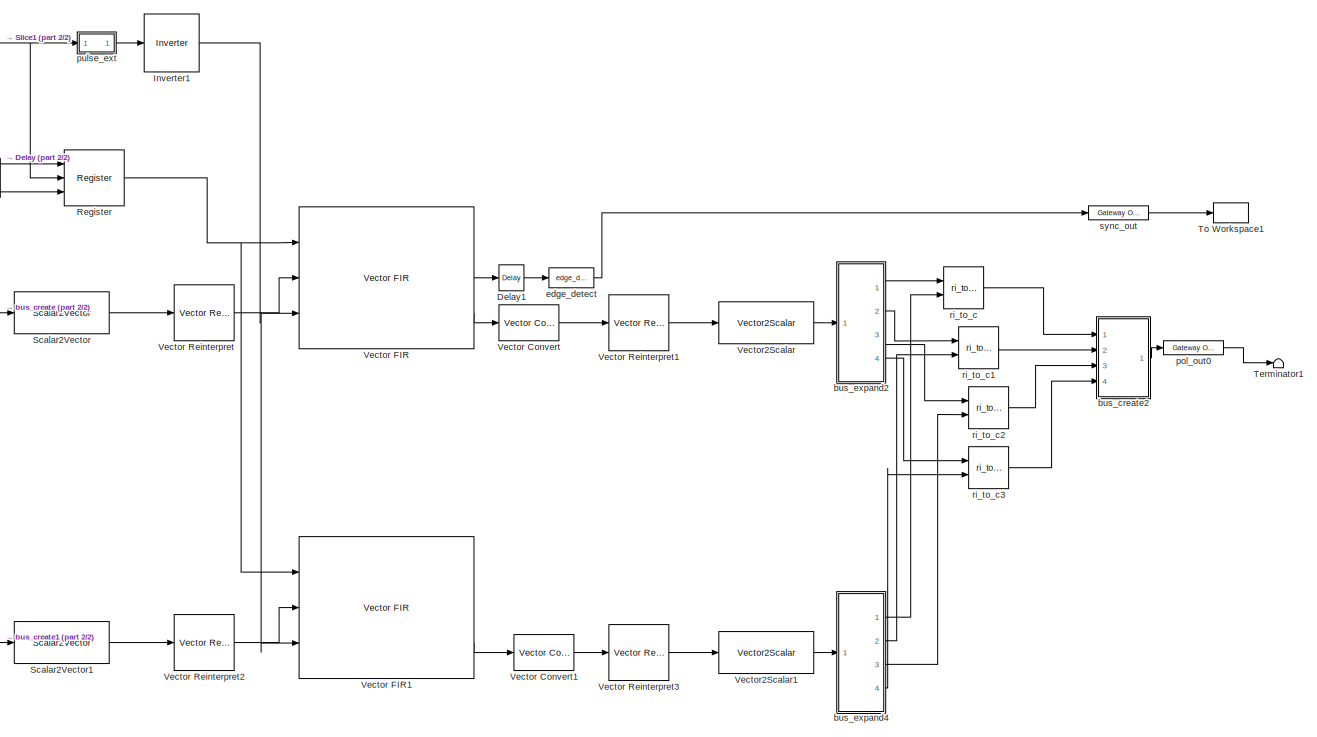
[diagram: root canvas - part 1/2, right side, full height]
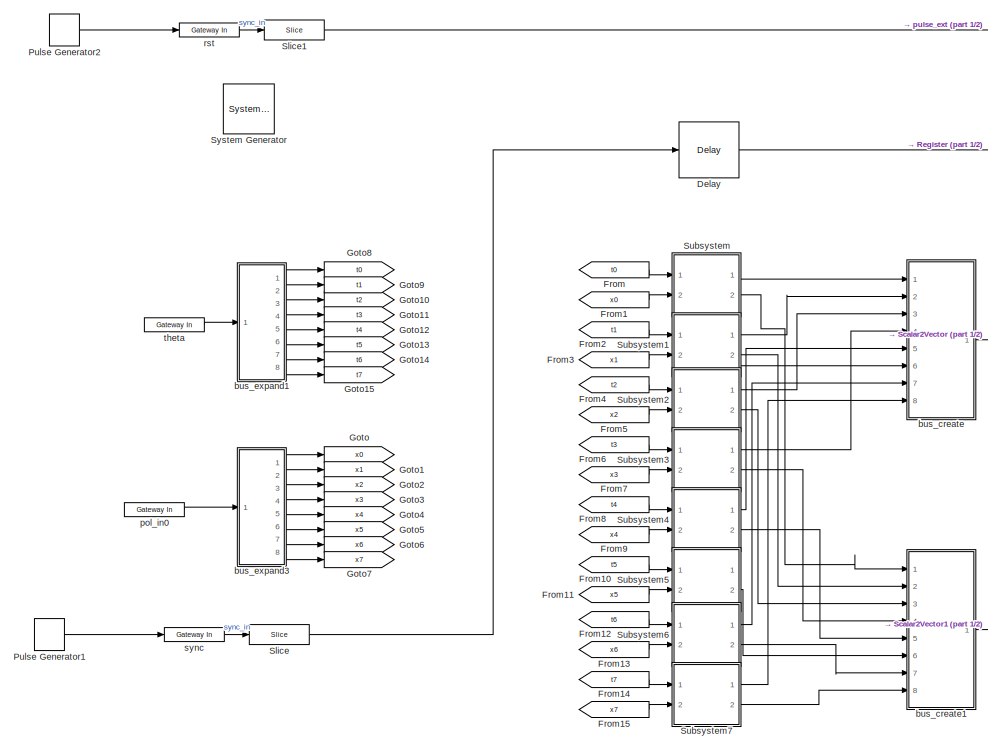
[diagram: root canvas - part 2/2, left side, full height]
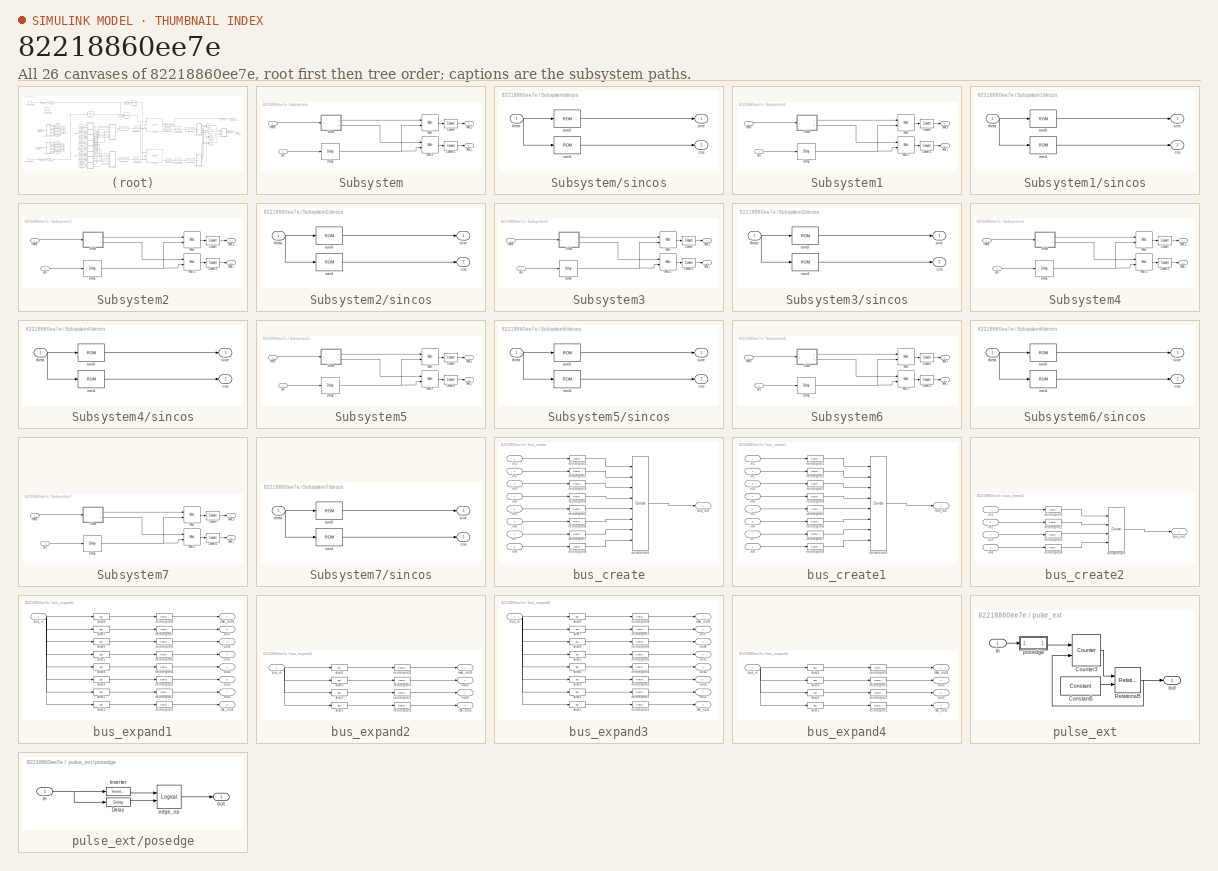
[diagram: thumbnail index - all 26 canvases of the model, root first then tree order]
MODEL slx_82218860ee7e
KIND model
CONFIG AbsTol = auto
CONFIG EnableMultiTasking = off
CONFIG FixedStep = auto
CONFIG MaxStep = auto
CONFIG MinStep = auto
CONFIG RelTol = 1e-3
CONFIG SampleTimeConstraint = Unconstrained
CONFIG Solver = VariableStepDiscrete
CONFIG SolverName = VariableStepDiscrete
CONFIG StartTime = 0.0
CONFIG StopTime = 2^11*3
BLOCK [Reference]  System Generator  REF=xbsIndex_r4/ System Generator
  AttributesFormatString = System\nGenerator
  Ports = []
  SourceBlock = xbsIndex_r4/ System Generator
  SourceType = Xilinx System Generator Block
  Tag = genX
  UserDataPersistent = on
BLOCK [Reference] Delay  REF=xbsIndex_r4/Delay
  Ports = [1, 1]
  SourceBlock = xbsIndex_r4/Delay
  SourceType = Xilinx Delay Block
BLOCK [Reference] Delay1  REF=xbsIndex_r4/Delay
  Ports = [1, 1]
  SourceBlock = xbsIndex_r4/Delay
  SourceType = Xilinx Delay Block
BLOCK [From] From
  GotoTag = t0
BLOCK [From] From1
  GotoTag = x0
BLOCK [From] From10
  GotoTag = t5
BLOCK [From] From11
  GotoTag = x5
BLOCK [From] From12
  GotoTag = t6
BLOCK [From] From13
  GotoTag = x6
BLOCK [From] From14
  GotoTag = t7
BLOCK [From] From15
  GotoTag = x7
BLOCK [From] From2
  GotoTag = t1
BLOCK [From] From3
  GotoTag = x1
BLOCK [From] From4
  GotoTag = t2
BLOCK [From] From5
  GotoTag = x2
BLOCK [From] From6
  GotoTag = t3
BLOCK [From] From7
  GotoTag = x3
BLOCK [From] From8
  GotoTag = t4
BLOCK [From] From9
  GotoTag = x4
BLOCK [Goto] Goto
  GotoTag = x0
BLOCK [Goto] Goto1
  GotoTag = x1
BLOCK [Goto] Goto10
  GotoTag = t2
BLOCK [Goto] Goto11
  GotoTag = t3
BLOCK [Goto] Goto12
  GotoTag = t4
BLOCK [Goto] Goto13
  GotoTag = t5
BLOCK [Goto] Goto14
  GotoTag = t6
BLOCK [Goto] Goto15
  GotoTag = t7
BLOCK [Goto] Goto2
  GotoTag = x2
BLOCK [Goto] Goto3
  GotoTag = x3
BLOCK [Goto] Goto4
  GotoTag = x4
BLOCK [Goto] Goto5
  GotoTag = x5
BLOCK [Goto] Goto6
  GotoTag = x6
BLOCK [Goto] Goto7
  GotoTag = x7
BLOCK [Goto] Goto8
  GotoTag = t0
BLOCK [Goto] Goto9
  GotoTag = t1
BLOCK [Reference] Inverter1  REF=xbsIndex_r4/Inverter
  Ports = [1, 1]
  SourceBlock = xbsIndex_r4/Inverter
  SourceType = Xilinx Inverter Block
BLOCK [DiscretePulseGenerator] Pulse Generator1
  Amplitude = 1.0
  AttributesFormatString = %<Amplitude> @ t=%<PhaseDelay>
  Period = 2^22
  PhaseDelay = 4
  Ports = [0, 1]
BLOCK [DiscretePulseGenerator] Pulse Generator2
  Amplitude = 1.0
  AttributesFormatString = %<Amplitude> @ t=%<PhaseDelay>
  Period = 2^22
  PhaseDelay = 4
  Ports = [0, 1]
BLOCK [Reference] Register  REF=xbsIndex_r4/Register
  Ports = [3, 1]
  SourceBlock = xbsIndex_r4/Register
  SourceType = Xilinx Register Block
BLOCK [Reference] Scalar2Vector  REF=xrbsSSR_Library/Scalar2Vector
  Ports = [1, 1]
  SourceBlock = xrbsSSR_Library/Scalar2Vector
  SourceProductName = Xilinx SSR Blockset
  SourceType = Xilinx Scalar2Vector Block
BLOCK [Reference] Scalar2Vector1  REF=xrbsSSR_Library/Scalar2Vector
  Ports = [1, 1]
  SourceBlock = xrbsSSR_Library/Scalar2Vector
  SourceProductName = Xilinx SSR Blockset
  SourceType = Xilinx Scalar2Vector Block
BLOCK [Reference] Slice  REF=xbsIndex_r4/Slice
  Ports = [1, 1]
  SourceBlock = xbsIndex_r4/Slice
  SourceType = Xilinx Bit Slice Extractor Block
BLOCK [Reference] Slice1  REF=xbsIndex_r4/Slice
  Ports = [1, 1]
  SourceBlock = xbsIndex_r4/Slice
  SourceType = Xilinx Bit Slice Extractor Block
BLOCK [SubSystem] Subsystem
  Ports = [2, 2]
  RequestExecContextInheritance = off
BLOCK [Reference] Subsystem/Convert  REF=xbsIndex_r4/Convert
  Ports = [1, 1]
  SourceBlock = xbsIndex_r4/Convert
  SourceType = Xilinx Type Converter Block
BLOCK [Reference] Subsystem/Convert1  REF=xbsIndex_r4/Convert
  Ports = [1, 1]
  SourceBlock = xbsIndex_r4/Convert
  SourceType = Xilinx Type Converter Block
BLOCK [Reference] Subsystem/Delay  REF=xbsIndex_r4/Delay
  Ports = [1, 1]
  SourceBlock = xbsIndex_r4/Delay
  SourceType = Xilinx Delay Block
BLOCK [Reference] Subsystem/Mult  REF=xbsIndex_r4/Mult
  Ports = [2, 1]
  SourceBlock = xbsIndex_r4/Mult
  SourceType = Xilinx Multiplier Block
BLOCK [Reference] Subsystem/Mult1  REF=xbsIndex_r4/Mult
  Ports = [2, 1]
  SourceBlock = xbsIndex_r4/Mult
  SourceType = Xilinx Multiplier Block
BLOCK [Inport] Subsystem/din
  IconDisplay = Port number
  Port = 2
BLOCK [Outport] Subsystem/dout_i
  IconDisplay = Port number
  Port = 2
BLOCK [Outport] Subsystem/dout_r
  IconDisplay = Port number
BLOCK [SubSystem] Subsystem/sincos
  AncestorBlock = casper_library_downconverter/sincos
  Ports = [1, 2]
  RequestExecContextInheritance = off
  Tag = casper:sincos
  UserDataPersistent = on
BLOCK [Outport] Subsystem/sincos/cos
  IconDisplay = Port number
  Port = 2
BLOCK [Reference] Subsystem/sincos/rom0  REF=xbsIndex_r4/ROM
  Ports = [1, 1]
  SourceBlock = xbsIndex_r4/ROM
  SourceType = Xilinx Single Port Read-Only Memory Block
BLOCK [Reference] Subsystem/sincos/rom1  REF=xbsIndex_r4/ROM
  Ports = [1, 1]
  SourceBlock = xbsIndex_r4/ROM
  SourceType = Xilinx Single Port Read-Only Memory Block
BLOCK [Outport] Subsystem/sincos/sine
  IconDisplay = Port number
BLOCK [Inport] Subsystem/sincos/theta
  IconDisplay = Port number
BLOCK [Inport] Subsystem/theta
  IconDisplay = Port number
BLOCK [SubSystem] Subsystem1
  Ports = [2, 2]
  RequestExecContextInheritance = off
BLOCK [Reference] Subsystem1/Convert  REF=xbsIndex_r4/Convert
  Ports = [1, 1]
  SourceBlock = xbsIndex_r4/Convert
  SourceType = Xilinx Type Converter Block
BLOCK [Reference] Subsystem1/Convert1  REF=xbsIndex_r4/Convert
  Ports = [1, 1]
  SourceBlock = xbsIndex_r4/Convert
  SourceType = Xilinx Type Converter Block
BLOCK [Reference] Subsystem1/Delay  REF=xbsIndex_r4/Delay
  Ports = [1, 1]
  SourceBlock = xbsIndex_r4/Delay
  SourceType = Xilinx Delay Block
BLOCK [Reference] Subsystem1/Mult  REF=xbsIndex_r4/Mult
  Ports = [2, 1]
  SourceBlock = xbsIndex_r4/Mult
  SourceType = Xilinx Multiplier Block
BLOCK [Reference] Subsystem1/Mult1  REF=xbsIndex_r4/Mult
  Ports = [2, 1]
  SourceBlock = xbsIndex_r4/Mult
  SourceType = Xilinx Multiplier Block
BLOCK [Inport] Subsystem1/din
  IconDisplay = Port number
  Port = 2
BLOCK [Outport] Subsystem1/dout_i
  IconDisplay = Port number
  Port = 2
BLOCK [Outport] Subsystem1/dout_r
  IconDisplay = Port number
BLOCK [SubSystem] Subsystem1/sincos
  AncestorBlock = casper_library_downconverter/sincos
  Ports = [1, 2]
  RequestExecContextInheritance = off
  Tag = casper:sincos
  UserDataPersistent = on
BLOCK [Outport] Subsystem1/sincos/cos
  IconDisplay = Port number
  Port = 2
BLOCK [Reference] Subsystem1/sincos/rom0  REF=xbsIndex_r4/ROM
  Ports = [1, 1]
  SourceBlock = xbsIndex_r4/ROM
  SourceType = Xilinx Single Port Read-Only Memory Block
BLOCK [Reference] Subsystem1/sincos/rom1  REF=xbsIndex_r4/ROM
  Ports = [1, 1]
  SourceBlock = xbsIndex_r4/ROM
  SourceType = Xilinx Single Port Read-Only Memory Block
BLOCK [Outport] Subsystem1/sincos/sine
  IconDisplay = Port number
BLOCK [Inport] Subsystem1/sincos/theta
  IconDisplay = Port number
BLOCK [Inport] Subsystem1/theta
  IconDisplay = Port number
BLOCK [SubSystem] Subsystem2
  Ports = [2, 2]
  RequestExecContextInheritance = off
BLOCK [Reference] Subsystem2/Convert  REF=xbsIndex_r4/Convert
  Ports = [1, 1]
  SourceBlock = xbsIndex_r4/Convert
  SourceType = Xilinx Type Converter Block
BLOCK [Reference] Subsystem2/Convert1  REF=xbsIndex_r4/Convert
  Ports = [1, 1]
  SourceBlock = xbsIndex_r4/Convert
  SourceType = Xilinx Type Converter Block
BLOCK [Reference] Subsystem2/Delay  REF=xbsIndex_r4/Delay
  Ports = [1, 1]
  SourceBlock = xbsIndex_r4/Delay
  SourceType = Xilinx Delay Block
BLOCK [Reference] Subsystem2/Mult  REF=xbsIndex_r4/Mult
  Ports = [2, 1]
  SourceBlock = xbsIndex_r4/Mult
  SourceType = Xilinx Multiplier Block
BLOCK [Reference] Subsystem2/Mult1  REF=xbsIndex_r4/Mult
  Ports = [2, 1]
  SourceBlock = xbsIndex_r4/Mult
  SourceType = Xilinx Multiplier Block
BLOCK [Inport] Subsystem2/din
  IconDisplay = Port number
  Port = 2
BLOCK [Outport] Subsystem2/dout_i
  IconDisplay = Port number
  Port = 2
BLOCK [Outport] Subsystem2/dout_r
  IconDisplay = Port number
BLOCK [SubSystem] Subsystem2/sincos
  AncestorBlock = casper_library_downconverter/sincos
  Ports = [1, 2]
  RequestExecContextInheritance = off
  Tag = casper:sincos
  UserDataPersistent = on
BLOCK [Outport] Subsystem2/sincos/cos
  IconDisplay = Port number
  Port = 2
BLOCK [Reference] Subsystem2/sincos/rom0  REF=xbsIndex_r4/ROM
  Ports = [1, 1]
  SourceBlock = xbsIndex_r4/ROM
  SourceType = Xilinx Single Port Read-Only Memory Block
BLOCK [Reference] Subsystem2/sincos/rom1  REF=xbsIndex_r4/ROM
  Ports = [1, 1]
  SourceBlock = xbsIndex_r4/ROM
  SourceType = Xilinx Single Port Read-Only Memory Block
BLOCK [Outport] Subsystem2/sincos/sine
  IconDisplay = Port number
BLOCK [Inport] Subsystem2/sincos/theta
  IconDisplay = Port number
BLOCK [Inport] Subsystem2/theta
  IconDisplay = Port number
BLOCK [SubSystem] Subsystem3
  Ports = [2, 2]
  RequestExecContextInheritance = off
BLOCK [Reference] Subsystem3/Convert  REF=xbsIndex_r4/Convert
  Ports = [1, 1]
  SourceBlock = xbsIndex_r4/Convert
  SourceType = Xilinx Type Converter Block
BLOCK [Reference] Subsystem3/Convert1  REF=xbsIndex_r4/Convert
  Ports = [1, 1]
  SourceBlock = xbsIndex_r4/Convert
  SourceType = Xilinx Type Converter Block
BLOCK [Reference] Subsystem3/Delay  REF=xbsIndex_r4/Delay
  Ports = [1, 1]
  SourceBlock = xbsIndex_r4/Delay
  SourceType = Xilinx Delay Block
BLOCK [Reference] Subsystem3/Mult  REF=xbsIndex_r4/Mult
  Ports = [2, 1]
  SourceBlock = xbsIndex_r4/Mult
  SourceType = Xilinx Multiplier Block
BLOCK [Reference] Subsystem3/Mult1  REF=xbsIndex_r4/Mult
  Ports = [2, 1]
  SourceBlock = xbsIndex_r4/Mult
  SourceType = Xilinx Multiplier Block
BLOCK [Inport] Subsystem3/din
  IconDisplay = Port number
  Port = 2
BLOCK [Outport] Subsystem3/dout_i
  IconDisplay = Port number
  Port = 2
BLOCK [Outport] Subsystem3/dout_r
  IconDisplay = Port number
BLOCK [SubSystem] Subsystem3/sincos
  AncestorBlock = casper_library_downconverter/sincos
  Ports = [1, 2]
  RequestExecContextInheritance = off
  Tag = casper:sincos
  UserDataPersistent = on
BLOCK [Outport] Subsystem3/sincos/cos
  IconDisplay = Port number
  Port = 2
BLOCK [Reference] Subsystem3/sincos/rom0  REF=xbsIndex_r4/ROM
  Ports = [1, 1]
  SourceBlock = xbsIndex_r4/ROM
  SourceType = Xilinx Single Port Read-Only Memory Block
BLOCK [Reference] Subsystem3/sincos/rom1  REF=xbsIndex_r4/ROM
  Ports = [1, 1]
  SourceBlock = xbsIndex_r4/ROM
  SourceType = Xilinx Single Port Read-Only Memory Block
BLOCK [Outport] Subsystem3/sincos/sine
  IconDisplay = Port number
BLOCK [Inport] Subsystem3/sincos/theta
  IconDisplay = Port number
BLOCK [Inport] Subsystem3/theta
  IconDisplay = Port number
BLOCK [SubSystem] Subsystem4
  Ports = [2, 2]
  RequestExecContextInheritance = off
BLOCK [Reference] Subsystem4/Convert  REF=xbsIndex_r4/Convert
  Ports = [1, 1]
  SourceBlock = xbsIndex_r4/Convert
  SourceType = Xilinx Type Converter Block
BLOCK [Reference] Subsystem4/Convert1  REF=xbsIndex_r4/Convert
  Ports = [1, 1]
  SourceBlock = xbsIndex_r4/Convert
  SourceType = Xilinx Type Converter Block
BLOCK [Reference] Subsystem4/Delay  REF=xbsIndex_r4/Delay
  Ports = [1, 1]
  SourceBlock = xbsIndex_r4/Delay
  SourceType = Xilinx Delay Block
BLOCK [Reference] Subsystem4/Mult  REF=xbsIndex_r4/Mult
  Ports = [2, 1]
  SourceBlock = xbsIndex_r4/Mult
  SourceType = Xilinx Multiplier Block
BLOCK [Reference] Subsystem4/Mult1  REF=xbsIndex_r4/Mult
  Ports = [2, 1]
  SourceBlock = xbsIndex_r4/Mult
  SourceType = Xilinx Multiplier Block
BLOCK [Inport] Subsystem4/din
  IconDisplay = Port number
  Port = 2
BLOCK [Outport] Subsystem4/dout_i
  IconDisplay = Port number
  Port = 2
BLOCK [Outport] Subsystem4/dout_r
  IconDisplay = Port number
BLOCK [SubSystem] Subsystem4/sincos
  AncestorBlock = casper_library_downconverter/sincos
  Ports = [1, 2]
  RequestExecContextInheritance = off
  Tag = casper:sincos
  UserDataPersistent = on
BLOCK [Outport] Subsystem4/sincos/cos
  IconDisplay = Port number
  Port = 2
BLOCK [Reference] Subsystem4/sincos/rom0  REF=xbsIndex_r4/ROM
  Ports = [1, 1]
  SourceBlock = xbsIndex_r4/ROM
  SourceType = Xilinx Single Port Read-Only Memory Block
BLOCK [Reference] Subsystem4/sincos/rom1  REF=xbsIndex_r4/ROM
  Ports = [1, 1]
  SourceBlock = xbsIndex_r4/ROM
  SourceType = Xilinx Single Port Read-Only Memory Block
BLOCK [Outport] Subsystem4/sincos/sine
  IconDisplay = Port number
BLOCK [Inport] Subsystem4/sincos/theta
  IconDisplay = Port number
BLOCK [Inport] Subsystem4/theta
  IconDisplay = Port number
BLOCK [SubSystem] Subsystem5
  Ports = [2, 2]
  RequestExecContextInheritance = off
BLOCK [Reference] Subsystem5/Convert  REF=xbsIndex_r4/Convert
  Ports = [1, 1]
  SourceBlock = xbsIndex_r4/Convert
  SourceType = Xilinx Type Converter Block
BLOCK [Reference] Subsystem5/Convert1  REF=xbsIndex_r4/Convert
  Ports = [1, 1]
  SourceBlock = xbsIndex_r4/Convert
  SourceType = Xilinx Type Converter Block
BLOCK [Reference] Subsystem5/Delay  REF=xbsIndex_r4/Delay
  Ports = [1, 1]
  SourceBlock = xbsIndex_r4/Delay
  SourceType = Xilinx Delay Block
BLOCK [Reference] Subsystem5/Mult  REF=xbsIndex_r4/Mult
  Ports = [2, 1]
  SourceBlock = xbsIndex_r4/Mult
  SourceType = Xilinx Multiplier Block
BLOCK [Reference] Subsystem5/Mult1  REF=xbsIndex_r4/Mult
  Ports = [2, 1]
  SourceBlock = xbsIndex_r4/Mult
  SourceType = Xilinx Multiplier Block
BLOCK [Inport] Subsystem5/din
  IconDisplay = Port number
  Port = 2
BLOCK [Outport] Subsystem5/dout_i
  IconDisplay = Port number
  Port = 2
BLOCK [Outport] Subsystem5/dout_r
  IconDisplay = Port number
BLOCK [SubSystem] Subsystem5/sincos
  AncestorBlock = casper_library_downconverter/sincos
  Ports = [1, 2]
  RequestExecContextInheritance = off
  Tag = casper:sincos
  UserDataPersistent = on
BLOCK [Outport] Subsystem5/sincos/cos
  IconDisplay = Port number
  Port = 2
BLOCK [Reference] Subsystem5/sincos/rom0  REF=xbsIndex_r4/ROM
  Ports = [1, 1]
  SourceBlock = xbsIndex_r4/ROM
  SourceType = Xilinx Single Port Read-Only Memory Block
BLOCK [Reference] Subsystem5/sincos/rom1  REF=xbsIndex_r4/ROM
  Ports = [1, 1]
  SourceBlock = xbsIndex_r4/ROM
  SourceType = Xilinx Single Port Read-Only Memory Block
BLOCK [Outport] Subsystem5/sincos/sine
  IconDisplay = Port number
BLOCK [Inport] Subsystem5/sincos/theta
  IconDisplay = Port number
BLOCK [Inport] Subsystem5/theta
  IconDisplay = Port number
BLOCK [SubSystem] Subsystem6
  Ports = [2, 2]
  RequestExecContextInheritance = off
BLOCK [Reference] Subsystem6/Convert  REF=xbsIndex_r4/Convert
  Ports = [1, 1]
  SourceBlock = xbsIndex_r4/Convert
  SourceType = Xilinx Type Converter Block
BLOCK [Reference] Subsystem6/Convert1  REF=xbsIndex_r4/Convert
  Ports = [1, 1]
  SourceBlock = xbsIndex_r4/Convert
  SourceType = Xilinx Type Converter Block
BLOCK [Reference] Subsystem6/Delay  REF=xbsIndex_r4/Delay
  Ports = [1, 1]
  SourceBlock = xbsIndex_r4/Delay
  SourceType = Xilinx Delay Block
BLOCK [Reference] Subsystem6/Mult  REF=xbsIndex_r4/Mult
  Ports = [2, 1]
  SourceBlock = xbsIndex_r4/Mult
  SourceType = Xilinx Multiplier Block
BLOCK [Reference] Subsystem6/Mult1  REF=xbsIndex_r4/Mult
  Ports = [2, 1]
  SourceBlock = xbsIndex_r4/Mult
  SourceType = Xilinx Multiplier Block
BLOCK [Inport] Subsystem6/din
  IconDisplay = Port number
  Port = 2
BLOCK [Outport] Subsystem6/dout_i
  IconDisplay = Port number
  Port = 2
BLOCK [Outport] Subsystem6/dout_r
  IconDisplay = Port number
BLOCK [SubSystem] Subsystem6/sincos
  AncestorBlock = casper_library_downconverter/sincos
  Ports = [1, 2]
  RequestExecContextInheritance = off
  Tag = casper:sincos
  UserDataPersistent = on
BLOCK [Outport] Subsystem6/sincos/cos
  IconDisplay = Port number
  Port = 2
BLOCK [Reference] Subsystem6/sincos/rom0  REF=xbsIndex_r4/ROM
  Ports = [1, 1]
  SourceBlock = xbsIndex_r4/ROM
  SourceType = Xilinx Single Port Read-Only Memory Block
BLOCK [Reference] Subsystem6/sincos/rom1  REF=xbsIndex_r4/ROM
  Ports = [1, 1]
  SourceBlock = xbsIndex_r4/ROM
  SourceType = Xilinx Single Port Read-Only Memory Block
BLOCK [Outport] Subsystem6/sincos/sine
  IconDisplay = Port number
BLOCK [Inport] Subsystem6/sincos/theta
  IconDisplay = Port number
BLOCK [Inport] Subsystem6/theta
  IconDisplay = Port number
BLOCK [SubSystem] Subsystem7
  Ports = [2, 2]
  RequestExecContextInheritance = off
BLOCK [Reference] Subsystem7/Convert  REF=xbsIndex_r4/Convert
  Ports = [1, 1]
  SourceBlock = xbsIndex_r4/Convert
  SourceType = Xilinx Type Converter Block
BLOCK [Reference] Subsystem7/Convert1  REF=xbsIndex_r4/Convert
  Ports = [1, 1]
  SourceBlock = xbsIndex_r4/Convert
  SourceType = Xilinx Type Converter Block
BLOCK [Reference] Subsystem7/Delay  REF=xbsIndex_r4/Delay
  Ports = [1, 1]
  SourceBlock = xbsIndex_r4/Delay
  SourceType = Xilinx Delay Block
BLOCK [Reference] Subsystem7/Mult  REF=xbsIndex_r4/Mult
  Ports = [2, 1]
  SourceBlock = xbsIndex_r4/Mult
  SourceType = Xilinx Multiplier Block
BLOCK [Reference] Subsystem7/Mult1  REF=xbsIndex_r4/Mult
  Ports = [2, 1]
  SourceBlock = xbsIndex_r4/Mult
  SourceType = Xilinx Multiplier Block
BLOCK [Inport] Subsystem7/din
  IconDisplay = Port number
  Port = 2
BLOCK [Outport] Subsystem7/dout_i
  IconDisplay = Port number
  Port = 2
BLOCK [Outport] Subsystem7/dout_r
  IconDisplay = Port number
BLOCK [SubSystem] Subsystem7/sincos
  AncestorBlock = casper_library_downconverter/sincos
  Ports = [1, 2]
  RequestExecContextInheritance = off
  Tag = casper:sincos
  UserDataPersistent = on
BLOCK [Outport] Subsystem7/sincos/cos
  IconDisplay = Port number
  Port = 2
BLOCK [Reference] Subsystem7/sincos/rom0  REF=xbsIndex_r4/ROM
  Ports = [1, 1]
  SourceBlock = xbsIndex_r4/ROM
  SourceType = Xilinx Single Port Read-Only Memory Block
BLOCK [Reference] Subsystem7/sincos/rom1  REF=xbsIndex_r4/ROM
  Ports = [1, 1]
  SourceBlock = xbsIndex_r4/ROM
  SourceType = Xilinx Single Port Read-Only Memory Block
BLOCK [Outport] Subsystem7/sincos/sine
  IconDisplay = Port number
BLOCK [Inport] Subsystem7/sincos/theta
  IconDisplay = Port number
BLOCK [Inport] Subsystem7/theta
  IconDisplay = Port number
BLOCK [Terminator] Terminator1
BLOCK [ToWorkspace] To Workspace1
  MaxDataPoints = inf
  Ports = [1]
  SampleTime = -1
  SaveFormat = Structure With Time
  VariableName = sync
BLOCK [Reference] Vector Convert  REF=xrbsSSR_Library/Vector Convert
  Ports = [1, 1]
  SourceBlock = xrbsSSR_Library/Vector Convert
  SourceProductName = Xilinx SSR Blockset
  SourceType = Xilinx Vector Type Converter Block
BLOCK [Reference] Vector Convert1  REF=xrbsSSR_Library/Vector Convert
  Ports = [1, 1]
  SourceBlock = xrbsSSR_Library/Vector Convert
  SourceProductName = Xilinx SSR Blockset
  SourceType = Xilinx Vector Type Converter Block
BLOCK [Reference] Vector FIR  REF=xrbsSSR_Library/Vector FIR
  Ports = [3, 3]
  SourceBlock = xrbsSSR_Library/Vector FIR
  SourceProductName = Xilinx SSR Blockset
  SourceType = Xilinx Vector FIR Compiler 7.2 Block
BLOCK [Reference] Vector FIR1  REF=xrbsSSR_Library/Vector FIR
  Ports = [3, 3]
  SourceBlock = xrbsSSR_Library/Vector FIR
  SourceProductName = Xilinx SSR Blockset
  SourceType = Xilinx Vector FIR Compiler 7.2 Block
BLOCK [Reference] Vector Reinterpret  REF=xrbsSSR_Library/Vector Reinterpret
  Ports = [1, 1]
  SourceBlock = xrbsSSR_Library/Vector Reinterpret
  SourceProductName = Xilinx SSR Blockset
  SourceType = Xilinx Vector Type Reinterpreter Block
BLOCK [Reference] Vector Reinterpret1  REF=xrbsSSR_Library/Vector Reinterpret
  Ports = [1, 1]
  SourceBlock = xrbsSSR_Library/Vector Reinterpret
  SourceProductName = Xilinx SSR Blockset
  SourceType = Xilinx Vector Type Reinterpreter Block
BLOCK [Reference] Vector Reinterpret2  REF=xrbsSSR_Library/Vector Reinterpret
  Ports = [1, 1]
  SourceBlock = xrbsSSR_Library/Vector Reinterpret
  SourceProductName = Xilinx SSR Blockset
  SourceType = Xilinx Vector Type Reinterpreter Block
BLOCK [Reference] Vector Reinterpret3  REF=xrbsSSR_Library/Vector Reinterpret
  Ports = [1, 1]
  SourceBlock = xrbsSSR_Library/Vector Reinterpret
  SourceProductName = Xilinx SSR Blockset
  SourceType = Xilinx Vector Type Reinterpreter Block
BLOCK [Reference] Vector2Scalar  REF=xrbsSSR_Library/Vector2Scalar
  Ports = [1, 1]
  SourceBlock = xrbsSSR_Library/Vector2Scalar
  SourceProductName = Xilinx SSR Blockset
  SourceType = Xilinx Vector2Scalar Block
BLOCK [Reference] Vector2Scalar1  REF=xrbsSSR_Library/Vector2Scalar
  Ports = [1, 1]
  SourceBlock = xrbsSSR_Library/Vector2Scalar
  SourceProductName = Xilinx SSR Blockset
  SourceType = Xilinx Vector2Scalar Block
BLOCK [SubSystem] bus_create
  AncestorBlock = casper_library_flow_control/bus_create
  Ports = [8, 1]
  RequestExecContextInheritance = off
  UserDataPersistent = on
BLOCK [Outport] bus_create/bus_out
  IconDisplay = Port number
BLOCK [Reference] bus_create/concatenate  REF=xbsIndex_r4/Concat
  Ports = [8, 1]
  SourceBlock = xbsIndex_r4/Concat
  SourceType = Xilinx Bus Concatenator Block
BLOCK [Inport] bus_create/in1
  IconDisplay = Port number
BLOCK [Inport] bus_create/in2
  IconDisplay = Port number
  Port = 2
BLOCK [Inport] bus_create/in3
  IconDisplay = Port number
  Port = 3
BLOCK [Inport] bus_create/in4
  IconDisplay = Port number
  Port = 4
BLOCK [Inport] bus_create/in5
  IconDisplay = Port number
  Port = 5
BLOCK [Inport] bus_create/in6
  IconDisplay = Port number
  Port = 6
BLOCK [Inport] bus_create/in7
  IconDisplay = Port number
  Port = 7
BLOCK [Inport] bus_create/in8
  IconDisplay = Port number
  Port = 8
BLOCK [Reference] bus_create/reinterpret1  REF=xbsIndex_r4/Reinterpret
  Ports = [1, 1]
  SourceBlock = xbsIndex_r4/Reinterpret
  SourceType = Xilinx Type Reinterpreter Block
BLOCK [Reference] bus_create/reinterpret2  REF=xbsIndex_r4/Reinterpret
  Ports = [1, 1]
  SourceBlock = xbsIndex_r4/Reinterpret
  SourceType = Xilinx Type Reinterpreter Block
BLOCK [Reference] bus_create/reinterpret3  REF=xbsIndex_r4/Reinterpret
  Ports = [1, 1]
  SourceBlock = xbsIndex_r4/Reinterpret
  SourceType = Xilinx Type Reinterpreter Block
BLOCK [Reference] bus_create/reinterpret4  REF=xbsIndex_r4/Reinterpret
  Ports = [1, 1]
  SourceBlock = xbsIndex_r4/Reinterpret
  SourceType = Xilinx Type Reinterpreter Block
BLOCK [Reference] bus_create/reinterpret5  REF=xbsIndex_r4/Reinterpret
  Ports = [1, 1]
  SourceBlock = xbsIndex_r4/Reinterpret
  SourceType = Xilinx Type Reinterpreter Block
BLOCK [Reference] bus_create/reinterpret6  REF=xbsIndex_r4/Reinterpret
  Ports = [1, 1]
  SourceBlock = xbsIndex_r4/Reinterpret
  SourceType = Xilinx Type Reinterpreter Block
BLOCK [Reference] bus_create/reinterpret7  REF=xbsIndex_r4/Reinterpret
  Ports = [1, 1]
  SourceBlock = xbsIndex_r4/Reinterpret
  SourceType = Xilinx Type Reinterpreter Block
BLOCK [Reference] bus_create/reinterpret8  REF=xbsIndex_r4/Reinterpret
  Ports = [1, 1]
  SourceBlock = xbsIndex_r4/Reinterpret
  SourceType = Xilinx Type Reinterpreter Block
BLOCK [SubSystem] bus_create1
  AncestorBlock = casper_library_flow_control/bus_create
  Ports = [8, 1]
  RequestExecContextInheritance = off
  UserDataPersistent = on
BLOCK [Outport] bus_create1/bus_out
  IconDisplay = Port number
BLOCK [Reference] bus_create1/concatenate  REF=xbsIndex_r4/Concat
  Ports = [8, 1]
  SourceBlock = xbsIndex_r4/Concat
  SourceType = Xilinx Bus Concatenator Block
BLOCK [Inport] bus_create1/in1
  IconDisplay = Port number
BLOCK [Inport] bus_create1/in2
  IconDisplay = Port number
  Port = 2
BLOCK [Inport] bus_create1/in3
  IconDisplay = Port number
  Port = 3
BLOCK [Inport] bus_create1/in4
  IconDisplay = Port number
  Port = 4
BLOCK [Inport] bus_create1/in5
  IconDisplay = Port number
  Port = 5
BLOCK [Inport] bus_create1/in6
  IconDisplay = Port number
  Port = 6
BLOCK [Inport] bus_create1/in7
  IconDisplay = Port number
  Port = 7
BLOCK [Inport] bus_create1/in8
  IconDisplay = Port number
  Port = 8
BLOCK [Reference] bus_create1/reinterpret1  REF=xbsIndex_r4/Reinterpret
  Ports = [1, 1]
  SourceBlock = xbsIndex_r4/Reinterpret
  SourceType = Xilinx Type Reinterpreter Block
BLOCK [Reference] bus_create1/reinterpret2  REF=xbsIndex_r4/Reinterpret
  Ports = [1, 1]
  SourceBlock = xbsIndex_r4/Reinterpret
  SourceType = Xilinx Type Reinterpreter Block
BLOCK [Reference] bus_create1/reinterpret3  REF=xbsIndex_r4/Reinterpret
  Ports = [1, 1]
  SourceBlock = xbsIndex_r4/Reinterpret
  SourceType = Xilinx Type Reinterpreter Block
BLOCK [Reference] bus_create1/reinterpret4  REF=xbsIndex_r4/Reinterpret
  Ports = [1, 1]
  SourceBlock = xbsIndex_r4/Reinterpret
  SourceType = Xilinx Type Reinterpreter Block
BLOCK [Reference] bus_create1/reinterpret5  REF=xbsIndex_r4/Reinterpret
  Ports = [1, 1]
  SourceBlock = xbsIndex_r4/Reinterpret
  SourceType = Xilinx Type Reinterpreter Block
BLOCK [Reference] bus_create1/reinterpret6  REF=xbsIndex_r4/Reinterpret
  Ports = [1, 1]
  SourceBlock = xbsIndex_r4/Reinterpret
  SourceType = Xilinx Type Reinterpreter Block
BLOCK [Reference] bus_create1/reinterpret7  REF=xbsIndex_r4/Reinterpret
  Ports = [1, 1]
  SourceBlock = xbsIndex_r4/Reinterpret
  SourceType = Xilinx Type Reinterpreter Block
BLOCK [Reference] bus_create1/reinterpret8  REF=xbsIndex_r4/Reinterpret
  Ports = [1, 1]
  SourceBlock = xbsIndex_r4/Reinterpret
  SourceType = Xilinx Type Reinterpreter Block
BLOCK [SubSystem] bus_create2
  AncestorBlock = casper_library_flow_control/bus_create
  Ports = [4, 1]
  RequestExecContextInheritance = off
  UserDataPersistent = on
BLOCK [Outport] bus_create2/bus_out
  IconDisplay = Port number
BLOCK [Reference] bus_create2/concatenate  REF=xbsIndex_r4/Concat
  Ports = [4, 1]
  SourceBlock = xbsIndex_r4/Concat
  SourceType = Xilinx Bus Concatenator Block
BLOCK [Inport] bus_create2/in1
  IconDisplay = Port number
BLOCK [Inport] bus_create2/in2
  IconDisplay = Port number
  Port = 2
BLOCK [Inport] bus_create2/in3
  IconDisplay = Port number
  Port = 3
BLOCK [Inport] bus_create2/in4
  IconDisplay = Port number
  Port = 4
BLOCK [Reference] bus_create2/reinterpret1  REF=xbsIndex_r4/Reinterpret
  Ports = [1, 1]
  SourceBlock = xbsIndex_r4/Reinterpret
  SourceType = Xilinx Type Reinterpreter Block
BLOCK [Reference] bus_create2/reinterpret2  REF=xbsIndex_r4/Reinterpret
  Ports = [1, 1]
  SourceBlock = xbsIndex_r4/Reinterpret
  SourceType = Xilinx Type Reinterpreter Block
BLOCK [Reference] bus_create2/reinterpret3  REF=xbsIndex_r4/Reinterpret
  Ports = [1, 1]
  SourceBlock = xbsIndex_r4/Reinterpret
  SourceType = Xilinx Type Reinterpreter Block
BLOCK [Reference] bus_create2/reinterpret4  REF=xbsIndex_r4/Reinterpret
  Ports = [1, 1]
  SourceBlock = xbsIndex_r4/Reinterpret
  SourceType = Xilinx Type Reinterpreter Block
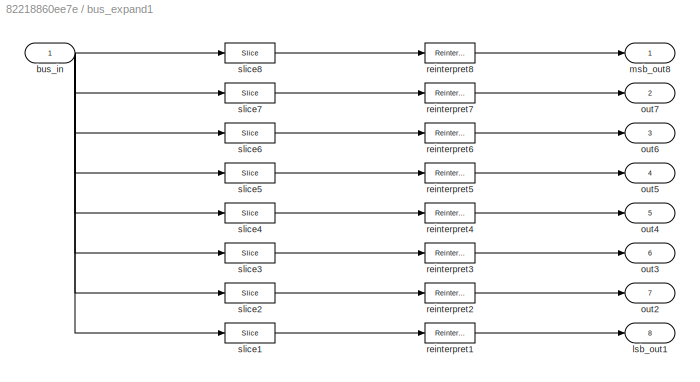
BLOCK [SubSystem] bus_expand1
  AncestorBlock = casper_library_flow_control/bus_expand
  AttributesFormatString = 8 outputs
  Ports = [1, 8]
  RequestExecContextInheritance = off
  UserDataPersistent = on
BLOCK [Inport] bus_expand1/bus_in
  IconDisplay = Port number
BLOCK [Outport] bus_expand1/lsb_out1
  IconDisplay = Port number
  Port = 8
BLOCK [Outport] bus_expand1/msb_out8
  IconDisplay = Port number
BLOCK [Outport] bus_expand1/out2
  IconDisplay = Port number
  Port = 7
BLOCK [Outport] bus_expand1/out3
  IconDisplay = Port number
  Port = 6
BLOCK [Outport] bus_expand1/out4
  IconDisplay = Port number
  Port = 5
BLOCK [Outport] bus_expand1/out5
  IconDisplay = Port number
  Port = 4
BLOCK [Outport] bus_expand1/out6
  IconDisplay = Port number
  Port = 3
BLOCK [Outport] bus_expand1/out7
  IconDisplay = Port number
  Port = 2
BLOCK [Reference] bus_expand1/reinterpret1  REF=xbsIndex_r4/Reinterpret
  Ports = [1, 1]
  SourceBlock = xbsIndex_r4/Reinterpret
  SourceType = Xilinx Type Reinterpreter Block
BLOCK [Reference] bus_expand1/reinterpret2  REF=xbsIndex_r4/Reinterpret
  Ports = [1, 1]
  SourceBlock = xbsIndex_r4/Reinterpret
  SourceType = Xilinx Type Reinterpreter Block
BLOCK [Reference] bus_expand1/reinterpret3  REF=xbsIndex_r4/Reinterpret
  Ports = [1, 1]
  SourceBlock = xbsIndex_r4/Reinterpret
  SourceType = Xilinx Type Reinterpreter Block
BLOCK [Reference] bus_expand1/reinterpret4  REF=xbsIndex_r4/Reinterpret
  Ports = [1, 1]
  SourceBlock = xbsIndex_r4/Reinterpret
  SourceType = Xilinx Type Reinterpreter Block
BLOCK [Reference] bus_expand1/reinterpret5  REF=xbsIndex_r4/Reinterpret
  Ports = [1, 1]
  SourceBlock = xbsIndex_r4/Reinterpret
  SourceType = Xilinx Type Reinterpreter Block
BLOCK [Reference] bus_expand1/reinterpret6  REF=xbsIndex_r4/Reinterpret
  Ports = [1, 1]
  SourceBlock = xbsIndex_r4/Reinterpret
  SourceType = Xilinx Type Reinterpreter Block
BLOCK [Reference] bus_expand1/reinterpret7  REF=xbsIndex_r4/Reinterpret
  Ports = [1, 1]
  SourceBlock = xbsIndex_r4/Reinterpret
  SourceType = Xilinx Type Reinterpreter Block
BLOCK [Reference] bus_expand1/reinterpret8  REF=xbsIndex_r4/Reinterpret
  Ports = [1, 1]
  SourceBlock = xbsIndex_r4/Reinterpret
  SourceType = Xilinx Type Reinterpreter Block
BLOCK [Reference] bus_expand1/slice1  REF=xbsIndex_r4/Slice
  Ports = [1, 1]
  SourceBlock = xbsIndex_r4/Slice
  SourceType = Xilinx Bit Slice Extractor Block
BLOCK [Reference] bus_expand1/slice2  REF=xbsIndex_r4/Slice
  Ports = [1, 1]
  SourceBlock = xbsIndex_r4/Slice
  SourceType = Xilinx Bit Slice Extractor Block
BLOCK [Reference] bus_expand1/slice3  REF=xbsIndex_r4/Slice
  Ports = [1, 1]
  SourceBlock = xbsIndex_r4/Slice
  SourceType = Xilinx Bit Slice Extractor Block
BLOCK [Reference] bus_expand1/slice4  REF=xbsIndex_r4/Slice
  Ports = [1, 1]
  SourceBlock = xbsIndex_r4/Slice
  SourceType = Xilinx Bit Slice Extractor Block
BLOCK [Reference] bus_expand1/slice5  REF=xbsIndex_r4/Slice
  Ports = [1, 1]
  SourceBlock = xbsIndex_r4/Slice
  SourceType = Xilinx Bit Slice Extractor Block
BLOCK [Reference] bus_expand1/slice6  REF=xbsIndex_r4/Slice
  Ports = [1, 1]
  SourceBlock = xbsIndex_r4/Slice
  SourceType = Xilinx Bit Slice Extractor Block
BLOCK [Reference] bus_expand1/slice7  REF=xbsIndex_r4/Slice
  Ports = [1, 1]
  SourceBlock = xbsIndex_r4/Slice
  SourceType = Xilinx Bit Slice Extractor Block
BLOCK [Reference] bus_expand1/slice8  REF=xbsIndex_r4/Slice
  Ports = [1, 1]
  SourceBlock = xbsIndex_r4/Slice
  SourceType = Xilinx Bit Slice Extractor Block
BLOCK [SubSystem] bus_expand2
  AncestorBlock = casper_library_flow_control/bus_expand
  AttributesFormatString = 4 outputs
  Ports = [1, 4]
  RequestExecContextInheritance = off
  UserDataPersistent = on
BLOCK [Inport] bus_expand2/bus_in
  IconDisplay = Port number
BLOCK [Outport] bus_expand2/lsb_out1
  IconDisplay = Port number
  Port = 4
BLOCK [Outport] bus_expand2/msb_out4
  IconDisplay = Port number
BLOCK [Outport] bus_expand2/out2
  IconDisplay = Port number
  Port = 3
BLOCK [Outport] bus_expand2/out3
  IconDisplay = Port number
  Port = 2
BLOCK [Reference] bus_expand2/reinterpret1  REF=xbsIndex_r4/Reinterpret
  Ports = [1, 1]
  SourceBlock = xbsIndex_r4/Reinterpret
  SourceType = Xilinx Type Reinterpreter Block
BLOCK [Reference] bus_expand2/reinterpret2  REF=xbsIndex_r4/Reinterpret
  Ports = [1, 1]
  SourceBlock = xbsIndex_r4/Reinterpret
  SourceType = Xilinx Type Reinterpreter Block
BLOCK [Reference] bus_expand2/reinterpret3  REF=xbsIndex_r4/Reinterpret
  Ports = [1, 1]
  SourceBlock = xbsIndex_r4/Reinterpret
  SourceType = Xilinx Type Reinterpreter Block
BLOCK [Reference] bus_expand2/reinterpret4  REF=xbsIndex_r4/Reinterpret
  Ports = [1, 1]
  SourceBlock = xbsIndex_r4/Reinterpret
  SourceType = Xilinx Type Reinterpreter Block
BLOCK [Reference] bus_expand2/slice1  REF=xbsIndex_r4/Slice
  Ports = [1, 1]
  SourceBlock = xbsIndex_r4/Slice
  SourceType = Xilinx Bit Slice Extractor Block
BLOCK [Reference] bus_expand2/slice2  REF=xbsIndex_r4/Slice
  Ports = [1, 1]
  SourceBlock = xbsIndex_r4/Slice
  SourceType = Xilinx Bit Slice Extractor Block
BLOCK [Reference] bus_expand2/slice3  REF=xbsIndex_r4/Slice
  Ports = [1, 1]
  SourceBlock = xbsIndex_r4/Slice
  SourceType = Xilinx Bit Slice Extractor Block
BLOCK [Reference] bus_expand2/slice4  REF=xbsIndex_r4/Slice
  Ports = [1, 1]
  SourceBlock = xbsIndex_r4/Slice
  SourceType = Xilinx Bit Slice Extractor Block
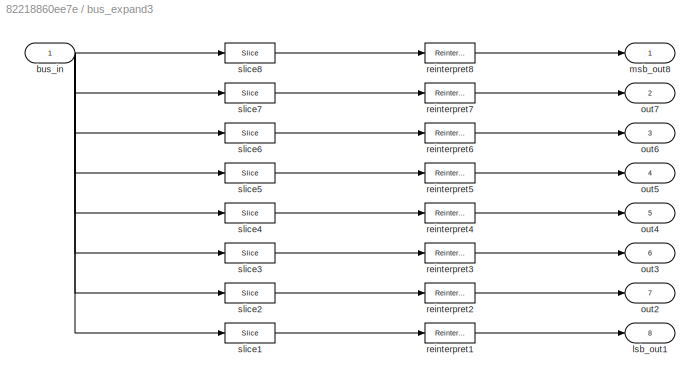
BLOCK [SubSystem] bus_expand3
  AncestorBlock = casper_library_flow_control/bus_expand
  AttributesFormatString = 8 outputs
  Ports = [1, 8]
  RequestExecContextInheritance = off
  UserDataPersistent = on
BLOCK [Inport] bus_expand3/bus_in
  IconDisplay = Port number
BLOCK [Outport] bus_expand3/lsb_out1
  IconDisplay = Port number
  Port = 8
BLOCK [Outport] bus_expand3/msb_out8
  IconDisplay = Port number
BLOCK [Outport] bus_expand3/out2
  IconDisplay = Port number
  Port = 7
BLOCK [Outport] bus_expand3/out3
  IconDisplay = Port number
  Port = 6
BLOCK [Outport] bus_expand3/out4
  IconDisplay = Port number
  Port = 5
BLOCK [Outport] bus_expand3/out5
  IconDisplay = Port number
  Port = 4
BLOCK [Outport] bus_expand3/out6
  IconDisplay = Port number
  Port = 3
BLOCK [Outport] bus_expand3/out7
  IconDisplay = Port number
  Port = 2
BLOCK [Reference] bus_expand3/reinterpret1  REF=xbsIndex_r4/Reinterpret
  Ports = [1, 1]
  SourceBlock = xbsIndex_r4/Reinterpret
  SourceType = Xilinx Type Reinterpreter Block
BLOCK [Reference] bus_expand3/reinterpret2  REF=xbsIndex_r4/Reinterpret
  Ports = [1, 1]
  SourceBlock = xbsIndex_r4/Reinterpret
  SourceType = Xilinx Type Reinterpreter Block
BLOCK [Reference] bus_expand3/reinterpret3  REF=xbsIndex_r4/Reinterpret
  Ports = [1, 1]
  SourceBlock = xbsIndex_r4/Reinterpret
  SourceType = Xilinx Type Reinterpreter Block
BLOCK [Reference] bus_expand3/reinterpret4  REF=xbsIndex_r4/Reinterpret
  Ports = [1, 1]
  SourceBlock = xbsIndex_r4/Reinterpret
  SourceType = Xilinx Type Reinterpreter Block
BLOCK [Reference] bus_expand3/reinterpret5  REF=xbsIndex_r4/Reinterpret
  Ports = [1, 1]
  SourceBlock = xbsIndex_r4/Reinterpret
  SourceType = Xilinx Type Reinterpreter Block
BLOCK [Reference] bus_expand3/reinterpret6  REF=xbsIndex_r4/Reinterpret
  Ports = [1, 1]
  SourceBlock = xbsIndex_r4/Reinterpret
  SourceType = Xilinx Type Reinterpreter Block
BLOCK [Reference] bus_expand3/reinterpret7  REF=xbsIndex_r4/Reinterpret
  Ports = [1, 1]
  SourceBlock = xbsIndex_r4/Reinterpret
  SourceType = Xilinx Type Reinterpreter Block
BLOCK [Reference] bus_expand3/reinterpret8  REF=xbsIndex_r4/Reinterpret
  Ports = [1, 1]
  SourceBlock = xbsIndex_r4/Reinterpret
  SourceType = Xilinx Type Reinterpreter Block
BLOCK [Reference] bus_expand3/slice1  REF=xbsIndex_r4/Slice
  Ports = [1, 1]
  SourceBlock = xbsIndex_r4/Slice
  SourceType = Xilinx Bit Slice Extractor Block
BLOCK [Reference] bus_expand3/slice2  REF=xbsIndex_r4/Slice
  Ports = [1, 1]
  SourceBlock = xbsIndex_r4/Slice
  SourceType = Xilinx Bit Slice Extractor Block
BLOCK [Reference] bus_expand3/slice3  REF=xbsIndex_r4/Slice
  Ports = [1, 1]
  SourceBlock = xbsIndex_r4/Slice
  SourceType = Xilinx Bit Slice Extractor Block
BLOCK [Reference] bus_expand3/slice4  REF=xbsIndex_r4/Slice
  Ports = [1, 1]
  SourceBlock = xbsIndex_r4/Slice
  SourceType = Xilinx Bit Slice Extractor Block
BLOCK [Reference] bus_expand3/slice5  REF=xbsIndex_r4/Slice
  Ports = [1, 1]
  SourceBlock = xbsIndex_r4/Slice
  SourceType = Xilinx Bit Slice Extractor Block
BLOCK [Reference] bus_expand3/slice6  REF=xbsIndex_r4/Slice
  Ports = [1, 1]
  SourceBlock = xbsIndex_r4/Slice
  SourceType = Xilinx Bit Slice Extractor Block
BLOCK [Reference] bus_expand3/slice7  REF=xbsIndex_r4/Slice
  Ports = [1, 1]
  SourceBlock = xbsIndex_r4/Slice
  SourceType = Xilinx Bit Slice Extractor Block
BLOCK [Reference] bus_expand3/slice8  REF=xbsIndex_r4/Slice
  Ports = [1, 1]
  SourceBlock = xbsIndex_r4/Slice
  SourceType = Xilinx Bit Slice Extractor Block
BLOCK [SubSystem] bus_expand4
  AncestorBlock = casper_library_flow_control/bus_expand
  AttributesFormatString = 4 outputs
  Ports = [1, 4]
  RequestExecContextInheritance = off
  UserDataPersistent = on
BLOCK [Inport] bus_expand4/bus_in
  IconDisplay = Port number
BLOCK [Outport] bus_expand4/lsb_out1
  IconDisplay = Port number
  Port = 4
BLOCK [Outport] bus_expand4/msb_out4
  IconDisplay = Port number
BLOCK [Outport] bus_expand4/out2
  IconDisplay = Port number
  Port = 3
BLOCK [Outport] bus_expand4/out3
  IconDisplay = Port number
  Port = 2
BLOCK [Reference] bus_expand4/reinterpret1  REF=xbsIndex_r4/Reinterpret
  Ports = [1, 1]
  SourceBlock = xbsIndex_r4/Reinterpret
  SourceType = Xilinx Type Reinterpreter Block
BLOCK [Reference] bus_expand4/reinterpret2  REF=xbsIndex_r4/Reinterpret
  Ports = [1, 1]
  SourceBlock = xbsIndex_r4/Reinterpret
  SourceType = Xilinx Type Reinterpreter Block
BLOCK [Reference] bus_expand4/reinterpret3  REF=xbsIndex_r4/Reinterpret
  Ports = [1, 1]
  SourceBlock = xbsIndex_r4/Reinterpret
  SourceType = Xilinx Type Reinterpreter Block
BLOCK [Reference] bus_expand4/reinterpret4  REF=xbsIndex_r4/Reinterpret
  Ports = [1, 1]
  SourceBlock = xbsIndex_r4/Reinterpret
  SourceType = Xilinx Type Reinterpreter Block
BLOCK [Reference] bus_expand4/slice1  REF=xbsIndex_r4/Slice
  Ports = [1, 1]
  SourceBlock = xbsIndex_r4/Slice
  SourceType = Xilinx Bit Slice Extractor Block
BLOCK [Reference] bus_expand4/slice2  REF=xbsIndex_r4/Slice
  Ports = [1, 1]
  SourceBlock = xbsIndex_r4/Slice
  SourceType = Xilinx Bit Slice Extractor Block
BLOCK [Reference] bus_expand4/slice3  REF=xbsIndex_r4/Slice
  Ports = [1, 1]
  SourceBlock = xbsIndex_r4/Slice
  SourceType = Xilinx Bit Slice Extractor Block
BLOCK [Reference] bus_expand4/slice4  REF=xbsIndex_r4/Slice
  Ports = [1, 1]
  SourceBlock = xbsIndex_r4/Slice
  SourceType = Xilinx Bit Slice Extractor Block
BLOCK [Reference] edge_detect  REF=casper_library_misc/edge_detect  (lib defined in mdl_357510c33b49, mdl_57b5f564ae26, +4 more)
  AttributesFormatString = rising edges\nactive high
  Ports = [1, 1]
  SourceBlock = casper_library_misc/edge_detect
  SourceProductName = CASPER DSP Blockset
  SourceType = edge_detect
  UserDataPersistent = on
BLOCK [Reference] pol_in0  REF=xbsIndex_r4/Gateway In
  Ports = [1, 1]
  SourceBlock = xbsIndex_r4/Gateway In
  SourceType = Xilinx Gateway In Block
BLOCK [Reference] pol_out0  REF=xbsIndex_r4/Gateway Out
  Ports = [1, 1]
  SourceBlock = xbsIndex_r4/Gateway Out
  SourceType = Xilinx Gateway Out Block
BLOCK [SubSystem] pulse_ext
  AncestorBlock = casper_library_misc/pulse_ext
  Ports = [1, 1]
  RequestExecContextInheritance = off
BLOCK [Reference] pulse_ext/Constant5  REF=xbsIndex_r4/Constant
  Ports = [0, 1]
  SourceBlock = xbsIndex_r4/Constant
  SourceType = Xilinx Constant Block Block
BLOCK [Reference] pulse_ext/Counter3  REF=xbsIndex_r4/Counter
  Ports = [2, 1]
  SourceBlock = xbsIndex_r4/Counter
  SourceType = Xilinx Counter Block
BLOCK [Reference] pulse_ext/Relational5  REF=xbsIndex_r4/Relational
  Ports = [2, 1]
  SourceBlock = xbsIndex_r4/Relational
  SourceType = Xilinx Arithmetic Relational Operator Block
BLOCK [Inport] pulse_ext/in
  IconDisplay = Port number
BLOCK [Outport] pulse_ext/out
  IconDisplay = Port number
BLOCK [SubSystem] pulse_ext/posedge
  AncestorBlock = casper_library_misc/edge_detect
  AttributesFormatString = rising edges\nactive high
  Ports = [1, 1]
  RequestExecContextInheritance = off
  UserDataPersistent = on
BLOCK [Reference] pulse_ext/posedge/Delay  REF=xbsIndex_r4/Delay
  Ports = [1, 1]
  SourceBlock = xbsIndex_r4/Delay
  SourceType = Xilinx Delay Block
BLOCK [Reference] pulse_ext/posedge/Inverter  REF=xbsIndex_r4/Inverter
  Ports = [1, 1]
  SourceBlock = xbsIndex_r4/Inverter
  SourceType = Xilinx Inverter Block
BLOCK [Reference] pulse_ext/posedge/edge_op  REF=xbsIndex_r4/Logical
  Ports = [2, 1]
  SourceBlock = xbsIndex_r4/Logical
  SourceType = Xilinx Logical Block Block
BLOCK [Inport] pulse_ext/posedge/in
  IconDisplay = Port number
BLOCK [Outport] pulse_ext/posedge/out
  IconDisplay = Port number
BLOCK [Reference] ri_to_c  REF=casper_library_misc/ri_to_c  (lib defined in mdl_357510c33b49, mdl_57b5f564ae26, +4 more)
  Ports = [2, 1]
  SourceBlock = casper_library_misc/ri_to_c
  SourceProductName = CASPER DSP Blockset
  SourceType = ri_to_c
  UserDataPersistent = on
BLOCK [Reference] ri_to_c1  REF=casper_library_misc/ri_to_c  (lib defined in mdl_357510c33b49, mdl_57b5f564ae26, +4 more)
  Ports = [2, 1]
  SourceBlock = casper_library_misc/ri_to_c
  SourceProductName = CASPER DSP Blockset
  SourceType = ri_to_c
  UserDataPersistent = on
BLOCK [Reference] ri_to_c2  REF=casper_library_misc/ri_to_c  (lib defined in mdl_357510c33b49, mdl_57b5f564ae26, +4 more)
  Ports = [2, 1]
  SourceBlock = casper_library_misc/ri_to_c
  SourceProductName = CASPER DSP Blockset
  SourceType = ri_to_c
  UserDataPersistent = on
BLOCK [Reference] ri_to_c3  REF=casper_library_misc/ri_to_c  (lib defined in mdl_357510c33b49, mdl_57b5f564ae26, +4 more)
  Ports = [2, 1]
  SourceBlock = casper_library_misc/ri_to_c
  SourceProductName = CASPER DSP Blockset
  SourceType = ri_to_c
  UserDataPersistent = on
BLOCK [Reference] rst  REF=xbsIndex_r4/Gateway In
  Ports = [1, 1]
  SourceBlock = xbsIndex_r4/Gateway In
  SourceType = Xilinx Gateway In Block
BLOCK [Reference] sync  REF=xbsIndex_r4/Gateway In
  Ports = [1, 1]
  SourceBlock = xbsIndex_r4/Gateway In
  SourceType = Xilinx Gateway In Block
BLOCK [Reference] sync_out  REF=xbsIndex_r4/Gateway Out
  Ports = [1, 1]
  SourceBlock = xbsIndex_r4/Gateway Out
  SourceType = Xilinx Gateway Out Block
BLOCK [Reference] theta  REF=xbsIndex_r4/Gateway In
  Ports = [1, 1]
  SourceBlock = xbsIndex_r4/Gateway In
  SourceType = Xilinx Gateway In Block
LINE Delay1:1 -> edge_detect:1
NET Delay:1 -> Register:1, Register:3
LINE From10:1 -> Subsystem5:1
LINE From11:1 -> Subsystem5:2
LINE From12:1 -> Subsystem6:1
LINE From13:1 -> Subsystem6:2
LINE From14:1 -> Subsystem7:1
LINE From15:1 -> Subsystem7:2
LINE From1:1 -> Subsystem:2
LINE From2:1 -> Subsystem1:1
LINE From3:1 -> Subsystem1:2
LINE From4:1 -> Subsystem2:1
LINE From5:1 -> Subsystem2:2
LINE From6:1 -> Subsystem3:1
LINE From7:1 -> Subsystem3:2
LINE From8:1 -> Subsystem4:1
LINE From9:1 -> Subsystem4:2
LINE From:1 -> Subsystem:1
NET Inverter1:1 -> Vector FIR1:3, Vector FIR:3
LINE Pulse Generator1:1 -> sync:1
LINE Pulse Generator2:1 -> rst:1
NET Register:1 -> Vector FIR1:1, Vector FIR:1
LINE Scalar2Vector1:1 -> Vector Reinterpret2:1
LINE Scalar2Vector:1 -> Vector Reinterpret:1
NET Slice1:1 -> Register:2, pulse_ext:1
LINE Slice:1 -> Delay:1
LINE Subsystem/Convert1:1 -> Subsystem/dout_i:1
LINE Subsystem/Convert:1 -> Subsystem/dout_r:1
NET Subsystem/Delay:1 -> Subsystem/Mult1:2, Subsystem/Mult:2
LINE Subsystem/Mult1:1 -> Subsystem/Convert1:1
LINE Subsystem/Mult:1 -> Subsystem/Convert:1
LINE Subsystem/din:1 -> Subsystem/Delay:1
LINE Subsystem/sincos:1 -> Subsystem/Mult:1
LINE Subsystem/sincos:2 -> Subsystem/Mult1:1
LINE Subsystem/theta:1 -> Subsystem/sincos:1
LINE Subsystem1/Convert1:1 -> Subsystem1/dout_i:1
LINE Subsystem1/Convert:1 -> Subsystem1/dout_r:1
NET Subsystem1/Delay:1 -> Subsystem1/Mult1:2, Subsystem1/Mult:2
LINE Subsystem1/Mult1:1 -> Subsystem1/Convert1:1
LINE Subsystem1/Mult:1 -> Subsystem1/Convert:1
LINE Subsystem1/din:1 -> Subsystem1/Delay:1
LINE Subsystem1/sincos:1 -> Subsystem1/Mult:1
LINE Subsystem1/sincos:2 -> Subsystem1/Mult1:1
LINE Subsystem1/theta:1 -> Subsystem1/sincos:1
LINE Subsystem1:1 -> bus_create:2
LINE Subsystem1:2 -> bus_create1:2
LINE Subsystem2/Convert1:1 -> Subsystem2/dout_i:1
LINE Subsystem2/Convert:1 -> Subsystem2/dout_r:1
NET Subsystem2/Delay:1 -> Subsystem2/Mult1:2, Subsystem2/Mult:2
LINE Subsystem2/Mult1:1 -> Subsystem2/Convert1:1
LINE Subsystem2/Mult:1 -> Subsystem2/Convert:1
LINE Subsystem2/din:1 -> Subsystem2/Delay:1
LINE Subsystem2/sincos:1 -> Subsystem2/Mult:1
LINE Subsystem2/sincos:2 -> Subsystem2/Mult1:1
LINE Subsystem2/theta:1 -> Subsystem2/sincos:1
LINE Subsystem2:1 -> bus_create:3
LINE Subsystem2:2 -> bus_create1:3
LINE Subsystem3/Convert1:1 -> Subsystem3/dout_i:1
LINE Subsystem3/Convert:1 -> Subsystem3/dout_r:1
NET Subsystem3/Delay:1 -> Subsystem3/Mult1:2, Subsystem3/Mult:2
LINE Subsystem3/Mult1:1 -> Subsystem3/Convert1:1
LINE Subsystem3/Mult:1 -> Subsystem3/Convert:1
LINE Subsystem3/din:1 -> Subsystem3/Delay:1
LINE Subsystem3/sincos:1 -> Subsystem3/Mult:1
LINE Subsystem3/sincos:2 -> Subsystem3/Mult1:1
LINE Subsystem3/theta:1 -> Subsystem3/sincos:1
LINE Subsystem3:1 -> bus_create:4
LINE Subsystem3:2 -> bus_create1:4
LINE Subsystem4/Convert1:1 -> Subsystem4/dout_i:1
LINE Subsystem4/Convert:1 -> Subsystem4/dout_r:1
NET Subsystem4/Delay:1 -> Subsystem4/Mult1:2, Subsystem4/Mult:2
LINE Subsystem4/Mult1:1 -> Subsystem4/Convert1:1
LINE Subsystem4/Mult:1 -> Subsystem4/Convert:1
LINE Subsystem4/din:1 -> Subsystem4/Delay:1
LINE Subsystem4/sincos:1 -> Subsystem4/Mult:1
LINE Subsystem4/sincos:2 -> Subsystem4/Mult1:1
LINE Subsystem4/theta:1 -> Subsystem4/sincos:1
LINE Subsystem4:1 -> bus_create:5
LINE Subsystem4:2 -> bus_create1:5
LINE Subsystem5/Convert1:1 -> Subsystem5/dout_i:1
LINE Subsystem5/Convert:1 -> Subsystem5/dout_r:1
NET Subsystem5/Delay:1 -> Subsystem5/Mult1:2, Subsystem5/Mult:2
LINE Subsystem5/Mult1:1 -> Subsystem5/Convert1:1
LINE Subsystem5/Mult:1 -> Subsystem5/Convert:1
LINE Subsystem5/din:1 -> Subsystem5/Delay:1
LINE Subsystem5/sincos:1 -> Subsystem5/Mult:1
LINE Subsystem5/sincos:2 -> Subsystem5/Mult1:1
LINE Subsystem5/theta:1 -> Subsystem5/sincos:1
LINE Subsystem5:1 -> bus_create:6
LINE Subsystem5:2 -> bus_create1:6
LINE Subsystem6/Convert1:1 -> Subsystem6/dout_i:1
LINE Subsystem6/Convert:1 -> Subsystem6/dout_r:1
NET Subsystem6/Delay:1 -> Subsystem6/Mult1:2, Subsystem6/Mult:2
LINE Subsystem6/Mult1:1 -> Subsystem6/Convert1:1
LINE Subsystem6/Mult:1 -> Subsystem6/Convert:1
LINE Subsystem6/din:1 -> Subsystem6/Delay:1
LINE Subsystem6/sincos:1 -> Subsystem6/Mult:1
LINE Subsystem6/sincos:2 -> Subsystem6/Mult1:1
LINE Subsystem6/theta:1 -> Subsystem6/sincos:1
LINE Subsystem6:1 -> bus_create:7
LINE Subsystem6:2 -> bus_create1:7
LINE Subsystem7/Convert1:1 -> Subsystem7/dout_i:1
LINE Subsystem7/Convert:1 -> Subsystem7/dout_r:1
NET Subsystem7/Delay:1 -> Subsystem7/Mult1:2, Subsystem7/Mult:2
LINE Subsystem7/Mult1:1 -> Subsystem7/Convert1:1
LINE Subsystem7/Mult:1 -> Subsystem7/Convert:1
LINE Subsystem7/din:1 -> Subsystem7/Delay:1
LINE Subsystem7/sincos:1 -> Subsystem7/Mult:1
LINE Subsystem7/sincos:2 -> Subsystem7/Mult1:1
LINE Subsystem7/theta:1 -> Subsystem7/sincos:1
LINE Subsystem7:1 -> bus_create:8
LINE Subsystem7:2 -> bus_create1:8
LINE Subsystem:1 -> bus_create:1
LINE Subsystem:2 -> bus_create1:1
LINE Vector Convert1:1 -> Vector Reinterpret3:1
LINE Vector Convert:1 -> Vector Reinterpret1:1
LINE Vector FIR1:3 -> Vector Convert1:1
LINE Vector FIR:2 -> Delay1:1
LINE Vector FIR:3 -> Vector Convert:1
LINE Vector Reinterpret1:1 -> Vector2Scalar:1
LINE Vector Reinterpret2:1 -> Vector FIR1:2
LINE Vector Reinterpret3:1 -> Vector2Scalar1:1
LINE Vector Reinterpret:1 -> Vector FIR:2
LINE Vector2Scalar1:1 -> bus_expand4:1
LINE Vector2Scalar:1 -> bus_expand2:1
LINE bus_create1:1 -> Scalar2Vector1:1
LINE bus_create2:1 -> pol_out0:1
LINE bus_create:1 -> Scalar2Vector:1
LINE bus_expand1:1 -> Goto8:1
LINE bus_expand1:2 -> Goto9:1
LINE bus_expand1:3 -> Goto10:1
LINE bus_expand1:4 -> Goto11:1
LINE bus_expand1:5 -> Goto12:1
LINE bus_expand1:6 -> Goto13:1
LINE bus_expand1:7 -> Goto14:1
LINE bus_expand1:8 -> Goto15:1
LINE bus_expand2:1 -> ri_to_c:1
LINE bus_expand2:2 -> ri_to_c1:1
LINE bus_expand2:3 -> ri_to_c2:1
LINE bus_expand2:4 -> ri_to_c3:1
LINE bus_expand3:1 -> Goto:1
LINE bus_expand3:2 -> Goto1:1
LINE bus_expand3:3 -> Goto2:1
LINE bus_expand3:4 -> Goto3:1
LINE bus_expand3:5 -> Goto4:1
LINE bus_expand3:6 -> Goto5:1
LINE bus_expand3:7 -> Goto6:1
LINE bus_expand3:8 -> Goto7:1
LINE bus_expand4:1 -> ri_to_c:2
LINE bus_expand4:2 -> ri_to_c1:2
LINE bus_expand4:3 -> ri_to_c2:2
LINE bus_expand4:4 -> ri_to_c3:2
LINE edge_detect:1 -> sync_out:1
LINE pol_in0:1 -> bus_expand3:1
LINE pol_out0:1 -> Terminator1:1
LINE pulse_ext:1 -> Inverter1:1
LINE ri_to_c1:1 -> bus_create2:2
LINE ri_to_c2:1 -> bus_create2:3
LINE ri_to_c3:1 -> bus_create2:4
LINE ri_to_c:1 -> bus_create2:1
LINE rst:1 -> Slice1:1
LINE sync:1 -> Slice:1
LINE sync_out:1 -> To Workspace1:1
LINE theta:1 -> bus_expand1:1
note: NET lines group one-source signal fan-out (src -> all destinations, sorted); 1:1 wires keep LINE
